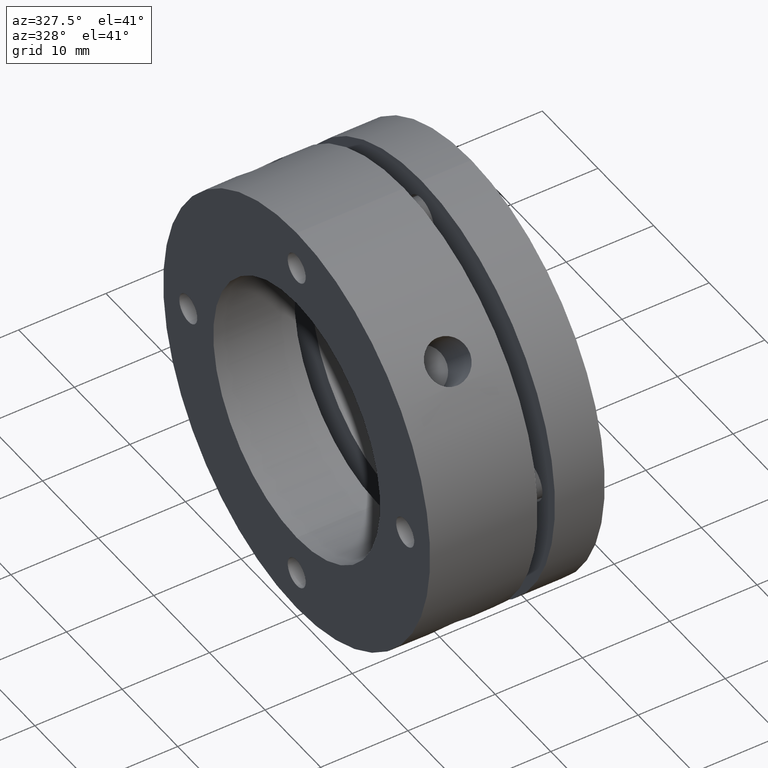
[diagram: clean part render]
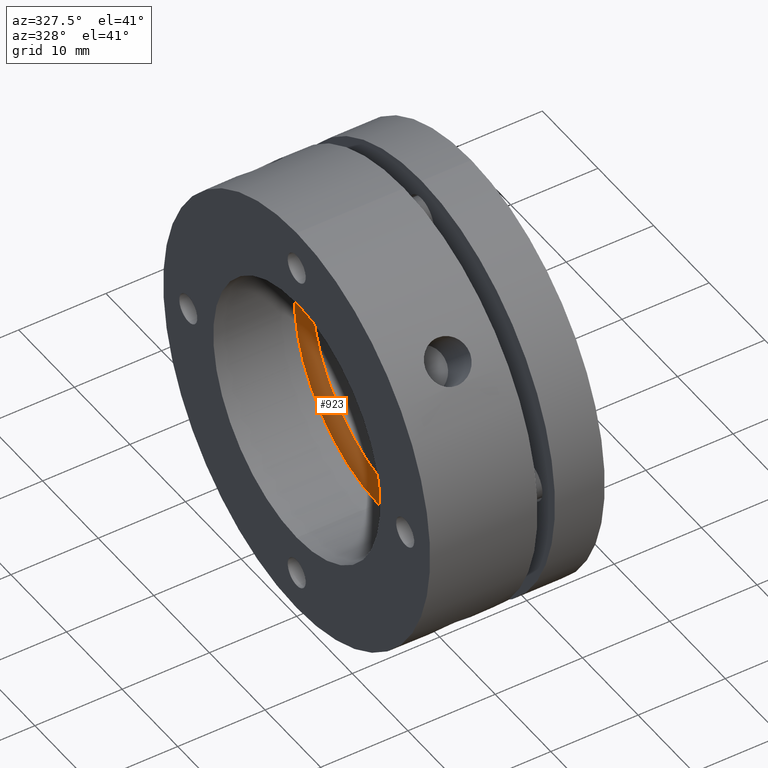
[diagram: same view with one face highlighted and labeled with its STEP entity id]
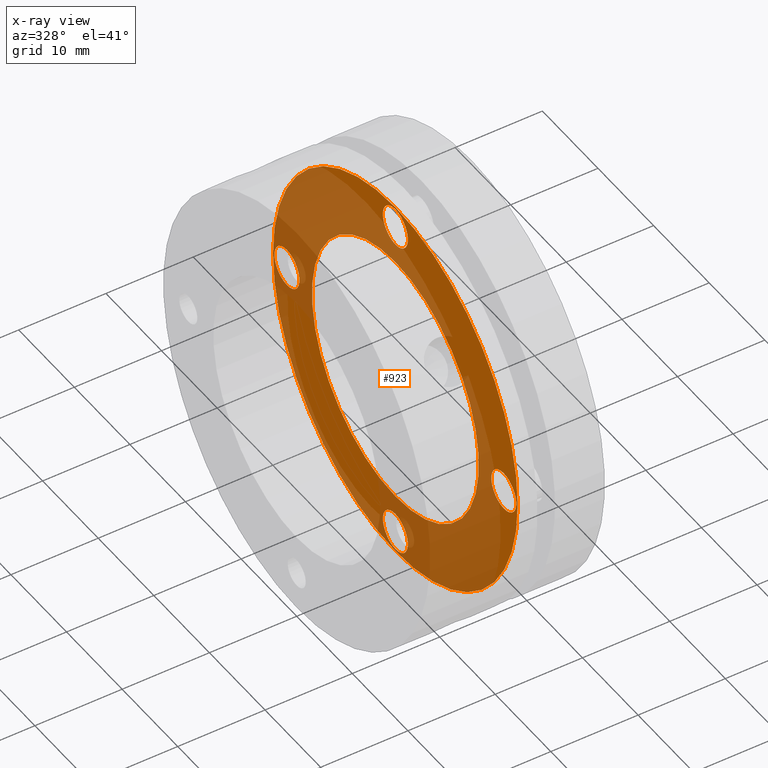
[diagram: x-ray of the same camera — body ghosted, the highlighted face saturated]
A machine part, auxiliary view. The second image highlights one B-rep face of the part: STEP entity #923.
The next image is the same camera in x-ray: the body ghosted, the highlighted face saturated — about 59% of this face is hidden behind the body in this view.
In plain terms, the highlighted planar face has unit normal (1, 0, 0).
Its self-contained STEP definition (entity closure, byte-faithful):
#241 = AXIS2_PLACEMENT_3D ( 'NONE', #1604, #1600, #1606 ) ;
#284 = VERTEX_POINT ( 'NONE', #1121 ) ;
#316 = VERTEX_POINT ( 'NONE', #1192 ) ;
#317 = VERTEX_POINT ( 'NONE', #1193 ) ;
#320 = VERTEX_POINT ( 'NONE', #1196 ) ;
#321 = VERTEX_POINT ( 'NONE', #1197 ) ;
#323 = VERTEX_POINT ( 'NONE', #1199 ) ;
#324 = VERTEX_POINT ( 'NONE', #1200 ) ;
#328 = VERTEX_POINT ( 'NONE', #1204 ) ;
#332 = VERTEX_POINT ( 'NONE', #1208 ) ;
#348 = VERTEX_POINT ( 'NONE', #1224 ) ;
#472 = AXIS2_PLACEMENT_3D ( 'NONE', #1324, #1325, #1326 ) ;
#493 = AXIS2_PLACEMENT_3D ( 'NONE', #1295, #1296, #1297 ) ;
#495 = AXIS2_PLACEMENT_3D ( 'NONE', #1305, #1306, #1307 ) ;
#573 = CIRCLE ( 'NONE', #493, 22.00000000000001100 ) ;
#578 = CIRCLE ( 'NONE', #495, 2.250000000000000400 ) ;
#587 = CIRCLE ( 'NONE', #472, 15.00000000000000000 ) ;
#762 = FACE_BOUND ( 'NONE', #3546, .T. ) ;
#764 = FACE_BOUND ( 'NONE', #3554, .T. ) ;
#766 = FACE_BOUND ( 'NONE', #3537, .T. ) ;
#768 = FACE_BOUND ( 'NONE', #3547, .T. ) ;
#770 = FACE_BOUND ( 'NONE', #3553, .T. ) ;
#771 = FACE_OUTER_BOUND ( 'NONE', #3555, .T. ) ;
#816 = EDGE_CURVE ( 'NONE', #284, #332, #573, .T. ) ;
#820 = EDGE_CURVE ( 'NONE', #317, #316, #578, .T. ) ;
#827 = EDGE_CURVE ( 'NONE', #1045, #1030, #587, .T. ) ;
#923 = ADVANCED_FACE ( 'NONE', ( #762, #770, #766, #764, #768, #771 ), #1602, .F. ) ;
#1030 = VERTEX_POINT ( 'NONE', #1710 ) ;
#1045 = VERTEX_POINT ( 'NONE', #1722 ) ;
#1121 = CARTESIAN_POINT ( 'NONE',  ( 11.30000000000000800, 0.0000000000000000000, 22.00000000000001100 ) ) ;
#1192 = CARTESIAN_POINT ( 'NONE',  ( 11.30000000000001000, 19.50000000000001400, -2.250000000000003600 ) ) ;
#1193 = CARTESIAN_POINT ( 'NONE',  ( 11.30000000000001000, 19.50000000000001400, 2.249999999999996900 ) ) ;
#1196 = CARTESIAN_POINT ( 'NONE',  ( 11.30000000000001000, -2.388060999999999800E-015, -21.75000000000001100 ) ) ;
#1197 = CARTESIAN_POINT ( 'NONE',  ( 11.30000000000001000, -2.112515470191844900E-015, -17.25000000000001400 ) ) ;
#1199 = CARTESIAN_POINT ( 'NONE',  ( 11.30000000000001000, -19.50000000000001400, 2.250000000000001800 ) ) ;
#1200 = CARTESIAN_POINT ( 'NONE',  ( 11.30000000000001000, -19.50000000000001400, -2.249999999999999100 ) ) ;
#1204 = CARTESIAN_POINT ( 'NONE',  ( 11.30000000000001000, 2.755455298081546700E-016, 21.75000000000001100 ) ) ;
#1208 = CARTESIAN_POINT ( 'NONE',  ( 11.30000000000000800, 2.694222958124178000E-015, -22.00000000000001100 ) ) ;
#1224 = CARTESIAN_POINT ( 'NONE',  ( 11.30000000000001000, 0.0000000000000000000, 17.25000000000001400 ) ) ;
#1295 = CARTESIAN_POINT ( 'NONE',  ( 11.30000000000000800, 0.0000000000000000000, 0.0000000000000000000 ) ) ;
#1296 = DIRECTION ( 'NONE',  ( 1.000000000000000000, -0.0000000000000000000, -0.0000000000000000000 ) ) ;
#1297 = DIRECTION ( 'NONE',  ( 0.0000000000000000000, 0.0000000000000000000, 1.000000000000000000 ) ) ;
#1305 = CARTESIAN_POINT ( 'NONE',  ( 11.30000000000001000, 19.50000000000001400, -3.582092000000000200E-015 ) ) ;
#1306 = DIRECTION ( 'NONE',  ( 1.000000000000000000, 0.0000000000000000000, 0.0000000000000000000 ) ) ;
#1307 = DIRECTION ( 'NONE',  ( 0.0000000000000000000, 0.0000000000000000000, -1.000000000000000000 ) ) ;
#1324 = CARTESIAN_POINT ( 'NONE',  ( 11.30000000000001000, 0.0000000000000000000, 0.0000000000000000000 ) ) ;
#1325 = DIRECTION ( 'NONE',  ( -1.000000000000000000, -0.0000000000000000000, -0.0000000000000000000 ) ) ;
#1326 = DIRECTION ( 'NONE',  ( 0.0000000000000000000, 0.0000000000000000000, -1.000000000000000000 ) ) ;
#1600 = DIRECTION ( 'NONE',  ( 1.000000000000000000, -0.0000000000000000000, 0.0000000000000000000 ) ) ;
#1602 = PLANE ( 'NONE',  #241 ) ;
#1604 = CARTESIAN_POINT ( 'NONE',  ( 11.30000000000001000, 11.00000000000000700, 0.0000000000000000000 ) ) ;
#1606 = DIRECTION ( 'NONE',  ( 0.0000000000000000000, 0.0000000000000000000, -1.000000000000000000 ) ) ;
#1710 = CARTESIAN_POINT ( 'NONE',  ( 11.30000000000001000, 1.836970198721029600E-015, 15.00000000000000000 ) ) ;
#1722 = CARTESIAN_POINT ( 'NONE',  ( 11.30000000000001000, 0.0000000000000000000, -15.00000000000000000 ) ) ;
#1833 = CARTESIAN_POINT ( 'NONE',  ( 11.30000000000001000, 0.0000000000000000000, 0.0000000000000000000 ) ) ;
#1834 = DIRECTION ( 'NONE',  ( -1.000000000000000000, -0.0000000000000000000, -0.0000000000000000000 ) ) ;
#1835 = DIRECTION ( 'NONE',  ( 0.0000000000000000000, 0.0000000000000000000, -1.000000000000000000 ) ) ;
#2147 = CARTESIAN_POINT ( 'NONE',  ( 11.30000000000000800, 0.0000000000000000000, 0.0000000000000000000 ) ) ;
#2148 = DIRECTION ( 'NONE',  ( 1.000000000000000000, -0.0000000000000000000, -0.0000000000000000000 ) ) ;
#2149 = DIRECTION ( 'NONE',  ( 0.0000000000000000000, 0.0000000000000000000, 1.000000000000000000 ) ) ;
#2153 = CARTESIAN_POINT ( 'NONE',  ( 11.30000000000001000, 0.0000000000000000000, 19.50000000000001400 ) ) ;
#2154 = DIRECTION ( 'NONE',  ( 1.000000000000000000, 0.0000000000000000000, 0.0000000000000000000 ) ) ;
#2155 = DIRECTION ( 'NONE',  ( 0.0000000000000000000, 0.0000000000000000000, -1.000000000000000000 ) ) ;
#2156 = CARTESIAN_POINT ( 'NONE',  ( 11.30000000000001000, -19.50000000000001400, 1.194031000000000000E-015 ) ) ;
#2157 = DIRECTION ( 'NONE',  ( 1.000000000000000000, 0.0000000000000000000, 0.0000000000000000000 ) ) ;
#2158 = DIRECTION ( 'NONE',  ( 0.0000000000000000000, 0.0000000000000000000, -1.000000000000000000 ) ) ;
#2159 = CARTESIAN_POINT ( 'NONE',  ( 11.30000000000001000, -2.388060999999999800E-015, -19.50000000000001400 ) ) ;
#2160 = DIRECTION ( 'NONE',  ( 1.000000000000000000, 0.0000000000000000000, 0.0000000000000000000 ) ) ;
#2161 = DIRECTION ( 'NONE',  ( 0.0000000000000000000, 0.0000000000000000000, -1.000000000000000000 ) ) ;
#2162 = CARTESIAN_POINT ( 'NONE',  ( 11.30000000000001000, 19.50000000000001400, -3.582092000000000200E-015 ) ) ;
#2163 = DIRECTION ( 'NONE',  ( 1.000000000000000000, 0.0000000000000000000, 0.0000000000000000000 ) ) ;
#2164 = DIRECTION ( 'NONE',  ( 0.0000000000000000000, 0.0000000000000000000, -1.000000000000000000 ) ) ;
#2391 = CARTESIAN_POINT ( 'NONE',  ( 11.30000000000001000, 0.0000000000000000000, 19.50000000000001400 ) ) ;
#2392 = DIRECTION ( 'NONE',  ( 1.000000000000000000, 0.0000000000000000000, 0.0000000000000000000 ) ) ;
#2393 = DIRECTION ( 'NONE',  ( 0.0000000000000000000, 0.0000000000000000000, -1.000000000000000000 ) ) ;
#2397 = CARTESIAN_POINT ( 'NONE',  ( 11.30000000000001000, -2.388060999999999800E-015, -19.50000000000001400 ) ) ;
#2398 = DIRECTION ( 'NONE',  ( 1.000000000000000000, 0.0000000000000000000, 0.0000000000000000000 ) ) ;
#2399 = DIRECTION ( 'NONE',  ( 0.0000000000000000000, 0.0000000000000000000, -1.000000000000000000 ) ) ;
#2403 = CARTESIAN_POINT ( 'NONE',  ( 11.30000000000001000, -19.50000000000001400, 1.194031000000000000E-015 ) ) ;
#2404 = DIRECTION ( 'NONE',  ( 1.000000000000000000, 0.0000000000000000000, 0.0000000000000000000 ) ) ;
#2405 = DIRECTION ( 'NONE',  ( 0.0000000000000000000, 0.0000000000000000000, -1.000000000000000000 ) ) ;
#2614 = CIRCLE ( 'NONE', #3361, 15.00000000000000000 ) ;
#2684 = CIRCLE ( 'NONE', #3381, 22.00000000000001100 ) ;
#2686 = CIRCLE ( 'NONE', #3384, 2.250000000000000400 ) ;
#2687 = CIRCLE ( 'NONE', #3383, 2.249999999999998700 ) ;
#2688 = CIRCLE ( 'NONE', #3385, 2.249999999999998700 ) ;
#2689 = CIRCLE ( 'NONE', #3386, 2.250000000000000400 ) ;
#2795 = CIRCLE ( 'NONE', #2890, 2.250000000000000400 ) ;
#2799 = CIRCLE ( 'NONE', #2888, 2.249999999999998700 ) ;
#2804 = CIRCLE ( 'NONE', #2889, 2.249999999999998700 ) ;
#2862 = EDGE_CURVE ( 'NONE', #1030, #1045, #2614, .T. ) ;
#2888 = AXIS2_PLACEMENT_3D ( 'NONE', #2391, #2392, #2393 ) ;
#2889 = AXIS2_PLACEMENT_3D ( 'NONE', #2397, #2398, #2399 ) ;
#2890 = AXIS2_PLACEMENT_3D ( 'NONE', #2403, #2404, #2405 ) ;
#3278 = ORIENTED_EDGE ( 'NONE', *, *, #3303, .F. ) ;
#3279 = ORIENTED_EDGE ( 'NONE', *, *, #816, .F. ) ;
#3280 = ORIENTED_EDGE ( 'NONE', *, *, #820, .T. ) ;
#3281 = ORIENTED_EDGE ( 'NONE', *, *, #3308, .T. ) ;
#3282 = ORIENTED_EDGE ( 'NONE', *, *, #3519, .T. ) ;
#3283 = ORIENTED_EDGE ( 'NONE', *, *, #3307, .T. ) ;
#3284 = ORIENTED_EDGE ( 'NONE', *, *, #3521, .T. ) ;
#3285 = ORIENTED_EDGE ( 'NONE', *, *, #3306, .T. ) ;
#3286 = ORIENTED_EDGE ( 'NONE', *, *, #3516, .T. ) ;
#3287 = ORIENTED_EDGE ( 'NONE', *, *, #3305, .T. ) ;
#3288 = ORIENTED_EDGE ( 'NONE', *, *, #2862, .F. ) ;
#3289 = ORIENTED_EDGE ( 'NONE', *, *, #827, .F. ) ;
#3303 = EDGE_CURVE ( 'NONE', #332, #284, #2684, .T. ) ;
#3305 = EDGE_CURVE ( 'NONE', #348, #328, #2687, .T. ) ;
#3306 = EDGE_CURVE ( 'NONE', #324, #323, #2686, .T. ) ;
#3307 = EDGE_CURVE ( 'NONE', #320, #321, #2688, .T. ) ;
#3308 = EDGE_CURVE ( 'NONE', #316, #317, #2689, .T. ) ;
#3361 = AXIS2_PLACEMENT_3D ( 'NONE', #1833, #1834, #1835 ) ;
#3381 = AXIS2_PLACEMENT_3D ( 'NONE', #2147, #2148, #2149 ) ;
#3383 = AXIS2_PLACEMENT_3D ( 'NONE', #2153, #2154, #2155 ) ;
#3384 = AXIS2_PLACEMENT_3D ( 'NONE', #2156, #2157, #2158 ) ;
#3385 = AXIS2_PLACEMENT_3D ( 'NONE', #2159, #2160, #2161 ) ;
#3386 = AXIS2_PLACEMENT_3D ( 'NONE', #2162, #2163, #2164 ) ;
#3516 = EDGE_CURVE ( 'NONE', #328, #348, #2799, .T. ) ;
#3519 = EDGE_CURVE ( 'NONE', #321, #320, #2804, .T. ) ;
#3521 = EDGE_CURVE ( 'NONE', #323, #324, #2795, .T. ) ;
#3537 = EDGE_LOOP ( 'NONE', ( #3285, #3284 ) ) ;
#3546 = EDGE_LOOP ( 'NONE', ( #3289, #3288 ) ) ;
#3547 = EDGE_LOOP ( 'NONE', ( #3281, #3280 ) ) ;
#3553 = EDGE_LOOP ( 'NONE', ( #3287, #3286 ) ) ;
#3554 = EDGE_LOOP ( 'NONE', ( #3283, #3282 ) ) ;
#3555 = EDGE_LOOP ( 'NONE', ( #3279, #3278 ) ) ;